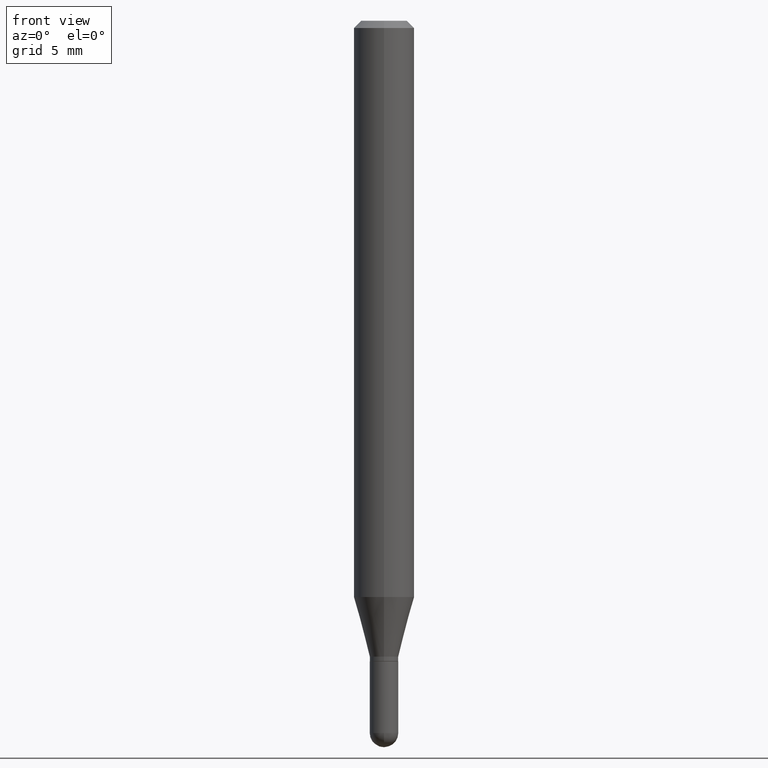
[diagram: clean part render]
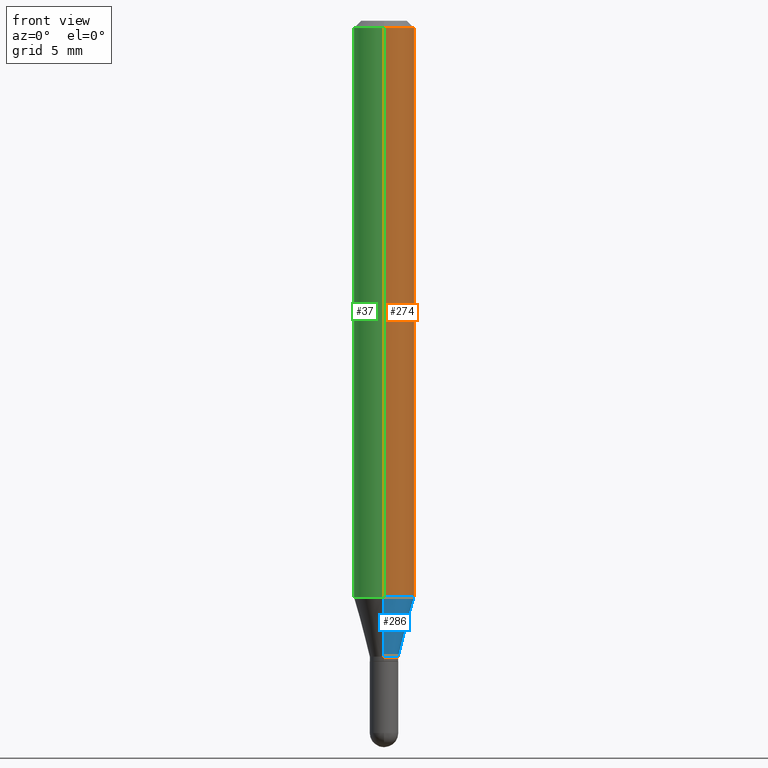
[diagram: same view with three faces highlighted in distinct colors, each labeled with its STEP entity id]
A machine part, front view with three faces highlighted in distinct colors.
Their STEP definitions:

[orange] entity #274 — the highlighted cylindrical surface (edge-blend (fillet) strip) has radius 1.5875 mm, axis along (-0, 0, 1).
#25 = ORIENTED_EDGE ( 'NONE', *, *, #492, .T. ) ;
#28 = EDGE_CURVE ( 'NONE', #188, #60, #48, .T. ) ;
#46 = DIRECTION ( 'NONE',  ( -6.982962677686265922E-15, -1.000000000000000000, 3.491497709509516713E-15 ) ) ;
#48 = CIRCLE ( 'NONE', #49, 0.06250000000000000000 ) ;
#49 = AXIS2_PLACEMENT_3D ( 'NONE', #247, #362, #115 ) ;
#55 = ORIENTED_EDGE ( 'NONE', *, *, #28, .F. ) ;
#60 = VERTEX_POINT ( 'NONE', #511 ) ;
#92 = CARTESIAN_POINT ( 'NONE',  ( 4.440892098500625669E-16, 0.06250000000000000000, -2.182186068443447946E-16 ) ) ;
#115 = DIRECTION ( 'NONE',  ( -6.982962677686265922E-15, -1.000000000000000000, 3.483106191921935554E-15 ) ) ;
#127 = LINE ( 'NONE', #92, #292 ) ;
#157 = CARTESIAN_POINT ( 'NONE',  ( -4.364351673553916201E-16, -0.06250000000000000000, 2.182186068443447946E-16 ) ) ;
#160 = CARTESIAN_POINT ( 'NONE',  ( -4.364351673553626788E-16, -0.06250000000000417721, -1.189842323350228215 ) ) ;
#174 = VECTOR ( 'NONE', #319, 39.37007874015748143 ) ;
#177 = CARTESIAN_POINT ( 'NONE',  ( 2.909708684259803731E-29, -4.154331746654804054E-15, -1.189842323350228437 ) ) ;
#188 = VERTEX_POINT ( 'NONE', #388 ) ;
#190 = EDGE_CURVE ( 'NONE', #350, #430, #277, .T. ) ;
#194 = CARTESIAN_POINT ( 'NONE',  ( 0.000000000000000000, 0.000000000000000000, 0.000000000000000000 ) ) ;
#217 = DIRECTION ( 'NONE',  ( -2.445457374609908707E-29, 3.491497709509516713E-15, 1.000000000000000000 ) ) ;
#220 = ORIENTED_EDGE ( 'NONE', *, *, #434, .F. ) ;
#239 = LINE ( 'NONE', #157, #174 ) ;
#247 = CARTESIAN_POINT ( 'NONE',  ( 3.668186061914865531E-31, -5.237246564264278866E-17, -0.01500000000000000812 ) ) ;
#248 = CARTESIAN_POINT ( 'NONE',  ( 4.440892098500915082E-16, 0.06249999999999580891, -1.189842323350228437 ) ) ;
#274 = ADVANCED_FACE ( 'NONE', ( #512 ), #505, .T. ) ;
#277 = CIRCLE ( 'NONE', #307, 0.06250000000000000000 ) ;
#292 = VECTOR ( 'NONE', #478, 39.37007874015748143 ) ;
#302 = EDGE_LOOP ( 'NONE', ( #317, #25, #55, #220 ) ) ;
#307 = AXIS2_PLACEMENT_3D ( 'NONE', #177, #217, #496 ) ;
#317 = ORIENTED_EDGE ( 'NONE', *, *, #190, .T. ) ;
#319 = DIRECTION ( 'NONE',  ( -2.445457374609908987E-29, 3.491497709509517108E-15, 1.000000000000000000 ) ) ;
#350 = VERTEX_POINT ( 'NONE', #160 ) ;
#353 = DIRECTION ( 'NONE',  ( -2.445457374609908707E-29, 3.491497709509516713E-15, 1.000000000000000000 ) ) ;
#362 = DIRECTION ( 'NONE',  ( -2.445457374609908707E-29, 3.491497709509516713E-15, 1.000000000000000000 ) ) ;
#388 = CARTESIAN_POINT ( 'NONE',  ( -4.364351673553912750E-16, -0.06250000000000005551, -0.01499999999999979128 ) ) ;
#427 = AXIS2_PLACEMENT_3D ( 'NONE', #194, #353, #46 ) ;
#430 = VERTEX_POINT ( 'NONE', #248 ) ;
#434 = EDGE_CURVE ( 'NONE', #350, #188, #239, .T. ) ;
#478 = DIRECTION ( 'NONE',  ( -2.445457374609908987E-29, 3.491497709509517108E-15, 1.000000000000000000 ) ) ;
#492 = EDGE_CURVE ( 'NONE', #430, #60, #127, .T. ) ;
#496 = DIRECTION ( 'NONE',  ( -6.982962677686265922E-15, -1.000000000000000000, 4.370956789862821150E-15 ) ) ;
#505 = CYLINDRICAL_SURFACE ( 'NONE', #427, 0.06250000000000000000 ) ;
#511 = CARTESIAN_POINT ( 'NONE',  ( 4.440892098500919026E-16, 0.06249999999999995837, -0.01500000000000022669 ) ) ;
#512 = FACE_OUTER_BOUND ( 'NONE', #302, .T. ) ;

[blue] entity #286 — the highlighted conical surface has half-angle 15 deg.
#1 = LINE ( 'NONE', #76, #365 ) ;
#11 = EDGE_CURVE ( 'NONE', #151, #430, #1, .T. ) ;
#34 = ORIENTED_EDGE ( 'NONE', *, *, #345, .F. ) ;
#76 = CARTESIAN_POINT ( 'NONE',  ( 2.096101070492630704E-16, 0.02949999999999561653, -1.313000000000000167 ) ) ;
#84 = DIRECTION ( 'NONE',  ( -6.982962677686265922E-15, -1.000000000000000000, 0.000000000000000000 ) ) ;
#109 = ORIENTED_EDGE ( 'NONE', *, *, #337, .T. ) ;
#138 = ORIENTED_EDGE ( 'NONE', *, *, #190, .F. ) ;
#151 = VERTEX_POINT ( 'NONE', #378 ) ;
#160 = CARTESIAN_POINT ( 'NONE',  ( -4.364351673553626788E-16, -0.06250000000000417721, -1.189842323350228215 ) ) ;
#177 = CARTESIAN_POINT ( 'NONE',  ( 2.909708684259803731E-29, -4.154331746654804054E-15, -1.189842323350228437 ) ) ;
#179 = VERTEX_POINT ( 'NONE', #416 ) ;
#190 = EDGE_CURVE ( 'NONE', #350, #430, #277, .T. ) ;
#202 = FACE_OUTER_BOUND ( 'NONE', #422, .T. ) ;
#217 = DIRECTION ( 'NONE',  ( -2.445457374609908707E-29, 3.491497709509516713E-15, 1.000000000000000000 ) ) ;
#248 = CARTESIAN_POINT ( 'NONE',  ( 4.440892098500915082E-16, 0.06249999999999580891, -1.189842323350228437 ) ) ;
#277 = CIRCLE ( 'NONE', #307, 0.06250000000000000000 ) ;
#283 = DIRECTION ( 'NONE',  ( -2.445457374609908707E-29, 3.491497709509516713E-15, 1.000000000000000000 ) ) ;
#285 = CARTESIAN_POINT ( 'NONE',  ( 3.210885532862809934E-29, -4.584336492585996193E-15, -1.313000000000000167 ) ) ;
#286 = ADVANCED_FACE ( 'NONE', ( #202 ), #489, .T. ) ;
#307 = AXIS2_PLACEMENT_3D ( 'NONE', #177, #217, #496 ) ;
#309 = ORIENTED_EDGE ( 'NONE', *, *, #11, .T. ) ;
#314 = CARTESIAN_POINT ( 'NONE',  ( 3.210885532862809934E-29, -4.584336492585996193E-15, -1.313000000000000167 ) ) ;
#323 = DIRECTION ( 'NONE',  ( -2.445457374609908707E-29, 3.491497709509516713E-15, 1.000000000000000000 ) ) ;
#337 = EDGE_CURVE ( 'NONE', #179, #151, #442, .T. ) ;
#339 = AXIS2_PLACEMENT_3D ( 'NONE', #285, #323, #84 ) ;
#345 = EDGE_CURVE ( 'NONE', #179, #350, #510, .T. ) ;
#350 = VERTEX_POINT ( 'NONE', #160 ) ;
#356 = VECTOR ( 'NONE', #472, 39.37007874015748143 ) ;
#365 = VECTOR ( 'NONE', #399, 39.37007874015748143 ) ;
#378 = CARTESIAN_POINT ( 'NONE',  ( 3.268496584496773879E-16, 0.02949999999999561653, -1.313000000000000167 ) ) ;
#399 = DIRECTION ( 'NONE',  ( 1.839019923739600315E-15, 0.2588190451025249583, 0.9659258262890670910 ) ) ;
#401 = DIRECTION ( 'NONE',  ( -6.982962677686265922E-15, -1.000000000000000000, 0.000000000000000000 ) ) ;
#416 = CARTESIAN_POINT ( 'NONE',  ( -2.059973989917141251E-16, -0.02950000000000478281, -1.313000000000000167 ) ) ;
#422 = EDGE_LOOP ( 'NONE', ( #109, #309, #138, #34 ) ) ;
#430 = VERTEX_POINT ( 'NONE', #248 ) ;
#436 = CARTESIAN_POINT ( 'NONE',  ( -2.059973989917141251E-16, -0.02950000000000478281, -1.313000000000000167 ) ) ;
#442 = CIRCLE ( 'NONE', #506, 0.02950000000000019967 ) ;
#472 = DIRECTION ( 'NONE',  ( -1.807323732225330139E-15, -0.2588190451025181860, 0.9659258262890689783 ) ) ;
#489 = CONICAL_SURFACE ( 'NONE', #339, 0.02950000000000019967, 0.2617993877991502960 ) ;
#496 = DIRECTION ( 'NONE',  ( -6.982962677686265922E-15, -1.000000000000000000, 4.370956789862821150E-15 ) ) ;
#506 = AXIS2_PLACEMENT_3D ( 'NONE', #314, #283, #401 ) ;
#510 = LINE ( 'NONE', #436, #356 ) ;

[green] entity #37 — the highlighted cylindrical surface (edge-blend (fillet) strip) has radius 1.5875 mm, axis along (-0, 0, 1).
#9 = CIRCLE ( 'NONE', #187, 0.06250000000000000000 ) ;
#37 = ADVANCED_FACE ( 'NONE', ( #278 ), #242, .T. ) ;
#60 = VERTEX_POINT ( 'NONE', #511 ) ;
#64 = ORIENTED_EDGE ( 'NONE', *, *, #183, .T. ) ;
#92 = CARTESIAN_POINT ( 'NONE',  ( 4.440892098500625669E-16, 0.06250000000000000000, -2.182186068443447946E-16 ) ) ;
#127 = LINE ( 'NONE', #92, #292 ) ;
#157 = CARTESIAN_POINT ( 'NONE',  ( -4.364351673553916201E-16, -0.06250000000000000000, 2.182186068443447946E-16 ) ) ;
#160 = CARTESIAN_POINT ( 'NONE',  ( -4.364351673553626788E-16, -0.06250000000000417721, -1.189842323350228215 ) ) ;
#165 = CARTESIAN_POINT ( 'NONE',  ( 0.000000000000000000, 0.000000000000000000, 0.000000000000000000 ) ) ;
#174 = VECTOR ( 'NONE', #319, 39.37007874015748143 ) ;
#183 = EDGE_CURVE ( 'NONE', #430, #350, #298, .T. ) ;
#187 = AXIS2_PLACEMENT_3D ( 'NONE', #376, #189, #341 ) ;
#188 = VERTEX_POINT ( 'NONE', #388 ) ;
#189 = DIRECTION ( 'NONE',  ( -2.445457374609908707E-29, 3.491497709509516713E-15, 1.000000000000000000 ) ) ;
#206 = EDGE_CURVE ( 'NONE', #60, #188, #9, .T. ) ;
#219 = AXIS2_PLACEMENT_3D ( 'NONE', #262, #276, #312 ) ;
#226 = ORIENTED_EDGE ( 'NONE', *, *, #206, .F. ) ;
#239 = LINE ( 'NONE', #157, #174 ) ;
#242 = CYLINDRICAL_SURFACE ( 'NONE', #291, 0.06250000000000000000 ) ;
#248 = CARTESIAN_POINT ( 'NONE',  ( 4.440892098500915082E-16, 0.06249999999999580891, -1.189842323350228437 ) ) ;
#262 = CARTESIAN_POINT ( 'NONE',  ( 2.909708684259803731E-29, -4.154331746654804054E-15, -1.189842323350228437 ) ) ;
#276 = DIRECTION ( 'NONE',  ( -2.445457374609908707E-29, 3.491497709509516713E-15, 1.000000000000000000 ) ) ;
#278 = FACE_OUTER_BOUND ( 'NONE', #387, .T. ) ;
#282 = DIRECTION ( 'NONE',  ( -6.982962677686265922E-15, -1.000000000000000000, 3.491497709509516713E-15 ) ) ;
#284 = ORIENTED_EDGE ( 'NONE', *, *, #434, .T. ) ;
#291 = AXIS2_PLACEMENT_3D ( 'NONE', #165, #397, #282 ) ;
#292 = VECTOR ( 'NONE', #478, 39.37007874015748143 ) ;
#298 = CIRCLE ( 'NONE', #219, 0.06250000000000000000 ) ;
#312 = DIRECTION ( 'NONE',  ( -6.982962677686265922E-15, -1.000000000000000000, 4.370956789862821150E-15 ) ) ;
#319 = DIRECTION ( 'NONE',  ( -2.445457374609908987E-29, 3.491497709509517108E-15, 1.000000000000000000 ) ) ;
#341 = DIRECTION ( 'NONE',  ( -6.982962677686265922E-15, -1.000000000000000000, 3.483106191921935554E-15 ) ) ;
#350 = VERTEX_POINT ( 'NONE', #160 ) ;
#375 = ORIENTED_EDGE ( 'NONE', *, *, #492, .F. ) ;
#376 = CARTESIAN_POINT ( 'NONE',  ( 3.668186061914865531E-31, -5.237246564264278866E-17, -0.01500000000000000812 ) ) ;
#387 = EDGE_LOOP ( 'NONE', ( #375, #64, #284, #226 ) ) ;
#388 = CARTESIAN_POINT ( 'NONE',  ( -4.364351673553912750E-16, -0.06250000000000005551, -0.01499999999999979128 ) ) ;
#397 = DIRECTION ( 'NONE',  ( -2.445457374609908707E-29, 3.491497709509516713E-15, 1.000000000000000000 ) ) ;
#430 = VERTEX_POINT ( 'NONE', #248 ) ;
#434 = EDGE_CURVE ( 'NONE', #350, #188, #239, .T. ) ;
#478 = DIRECTION ( 'NONE',  ( -2.445457374609908987E-29, 3.491497709509517108E-15, 1.000000000000000000 ) ) ;
#492 = EDGE_CURVE ( 'NONE', #430, #60, #127, .T. ) ;
#511 = CARTESIAN_POINT ( 'NONE',  ( 4.440892098500919026E-16, 0.06249999999999995837, -0.01500000000000022669 ) ) ;